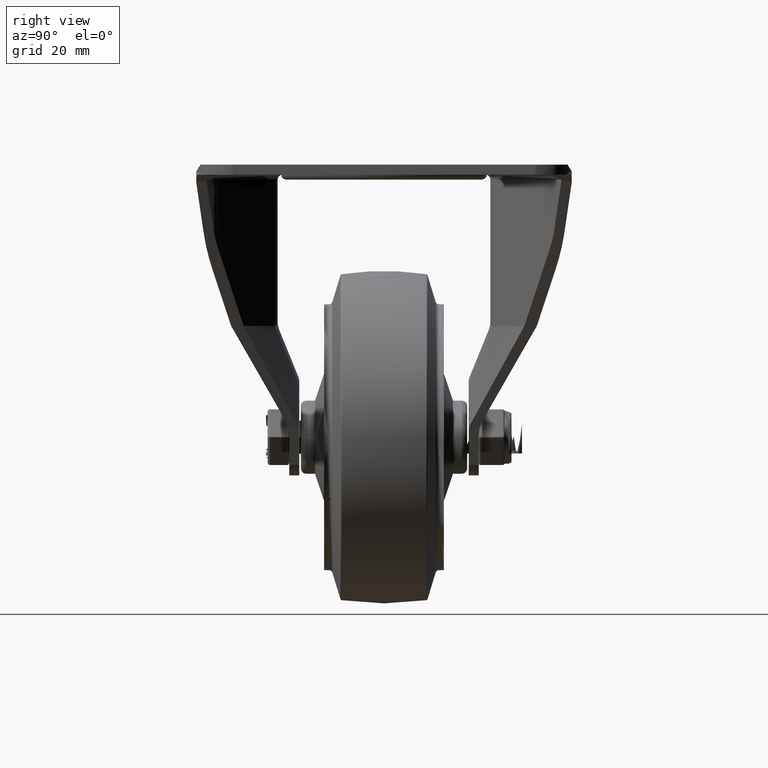
[diagram: clean part render]
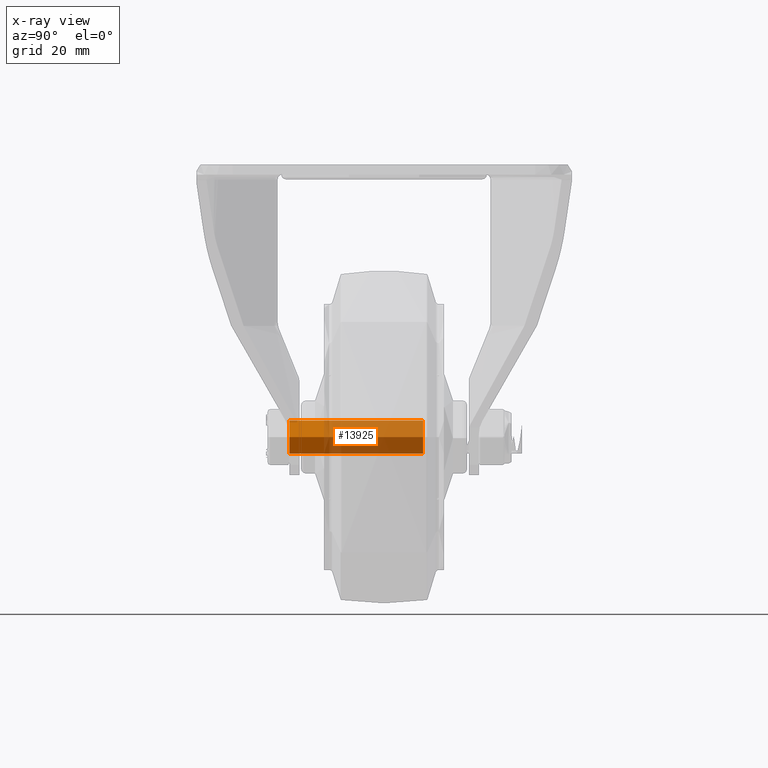
[diagram: x-ray — body ghosted, one internal face saturated and labeled with its STEP entity id]
A machine part, right view, then the same camera in x-ray: the body is ghosted and one INTERNAL B-rep face — a face not visible from any outside direction — is saturated and labeled: STEP entity #13925.
In plain terms, the highlighted cylindrical surface (bore or boss wall) has radius 5 mm, axis along (0, 1, 0).
Its self-contained STEP definition (entity closure, byte-faithful):
#2366=FACE_OUTER_BOUND('',#3322,.T.);
#3322=EDGE_LOOP('',(#12723,#12724,#12725,#12726));
#4194=LINE('',#40972,#5053);
#5053=VECTOR('',#18241,5.);
#5541=CIRCLE('',#15140,5.);
#5543=CIRCLE('',#15195,5.);
#6735=VERTEX_POINT('',#39736);
#6867=VERTEX_POINT('',#40970);
#8624=EDGE_CURVE('',#6735,#6735,#5541,.T.);
#8825=EDGE_CURVE('',#6867,#6867,#5543,.T.);
#8826=EDGE_CURVE('',#6867,#6735,#4194,.T.);
#12723=ORIENTED_EDGE('',*,*,#8825,.F.);
#12724=ORIENTED_EDGE('',*,*,#8826,.T.);
#12725=ORIENTED_EDGE('',*,*,#8624,.T.);
#12726=ORIENTED_EDGE('',*,*,#8826,.F.);
#13148=CYLINDRICAL_SURFACE('',#15194,5.);
#13925=ADVANCED_FACE('',(#2366),#13148,.T.);
#15140=AXIS2_PLACEMENT_3D('',#39737,#18004,#18005);
#15194=AXIS2_PLACEMENT_3D('',#40969,#18237,#18238);
#15195=AXIS2_PLACEMENT_3D('',#40971,#18239,#18240);
#18004=DIRECTION('center_axis',(0.,1.,3.49148336110938E-15));
#18005=DIRECTION('ref_axis',(-1.,0.,0.));
#18237=DIRECTION('center_axis',(0.,1.,3.49148336110938E-15));
#18238=DIRECTION('ref_axis',(-1.,0.,0.));
#18239=DIRECTION('center_axis',(5.34552942018439E-47,1.,3.49148336110938E-15));
#18240=DIRECTION('ref_axis',(1.,4.27583392245883E-31,-1.22464679914735E-16));
#18241=DIRECTION('',(0.,-1.,-3.49148336110938E-15));
#39736=CARTESIAN_POINT('',(5.,-31.8800011149681,-32.1300011149682));
#39737=CARTESIAN_POINT('Origin',(0.,-31.8800011149681,-32.1300011149682));
#40969=CARTESIAN_POINT('Origin',(0.,-31.8800011149681,-32.1300011149682));
#40970=CARTESIAN_POINT('',(5.,8.3699988850319,-32.1300011149681));
#40971=CARTESIAN_POINT('Origin',(0.,8.3699988850319,-32.1300011149681));
#40972=CARTESIAN_POINT('',(5.,-31.8800011149681,-32.1300011149682));